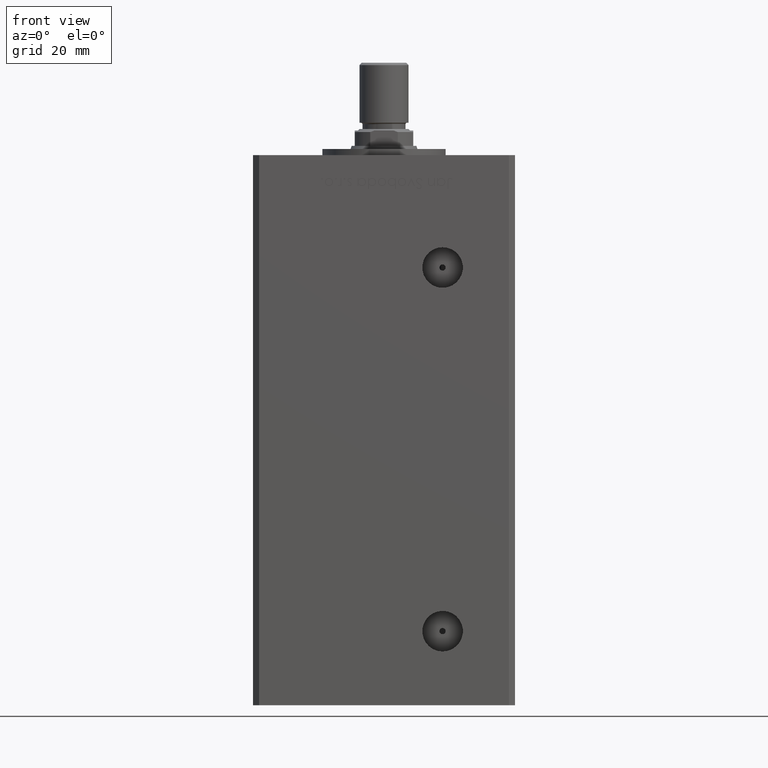
[diagram: clean part render]
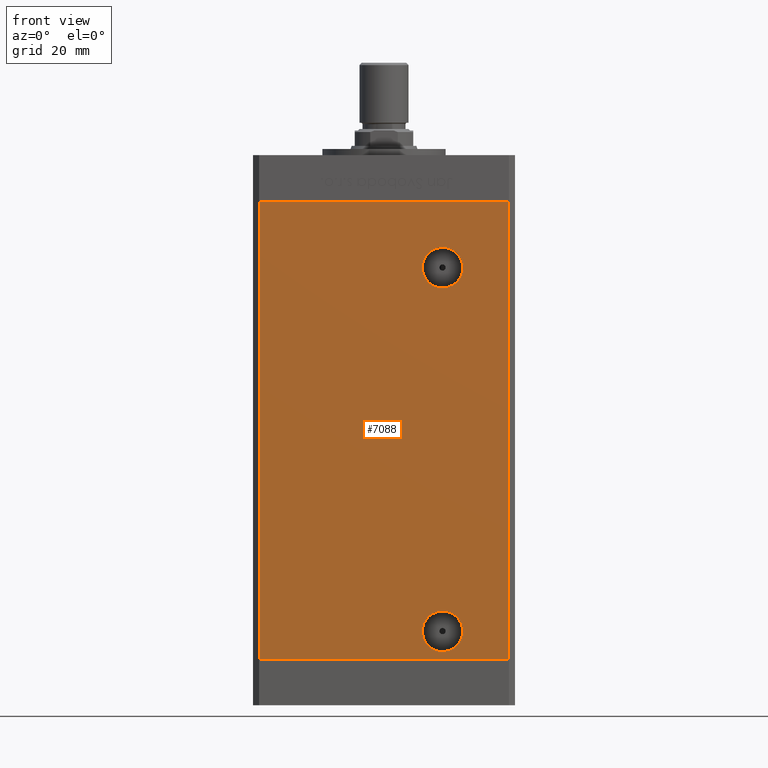
[diagram: same view with one face highlighted and labeled with its STEP entity id]
A machine part, front view. The second image highlights one B-rep face of the part: STEP entity #7088.
In plain terms, the highlighted planar face has unit normal (0, 1, 0).
Its self-contained STEP definition (entity closure, byte-faithful):
#644 = CARTESIAN_POINT ( 'NONE',  ( -40.49999999999998579, -37.50000000000000711, 148.5000000000000000 ) ) ;
#824 = CARTESIAN_POINT ( 'NONE',  ( 40.49999999999998579, -37.50000000000000711, 0.000000000000000000 ) ) ;
#1697 = ORIENTED_EDGE ( 'NONE', *, *, #6609, .F. ) ;
#2195 = CARTESIAN_POINT ( 'NONE',  ( 18.99999999999997513, -37.50000000000000711, 127.0000000000000000 ) ) ;
#2641 = EDGE_LOOP ( 'NONE', ( #50709, #27047 ) ) ;
#2709 = DIRECTION ( 'NONE',  ( -0.000000000000000000, 1.000000000000000000, -0.000000000000000000 ) ) ;
#3554 = VERTEX_POINT ( 'NONE', #25297 ) ;
#3616 = AXIS2_PLACEMENT_3D ( 'NONE', #644, #5415, #36718 ) ;
#3723 = CARTESIAN_POINT ( 'NONE',  ( 18.99999999999998934, -37.50000000000000711, 9.000000000000007105 ) ) ;
#4746 = ORIENTED_EDGE ( 'NONE', *, *, #27328, .T. ) ;
#5415 = DIRECTION ( 'NONE',  ( 0.000000000000000000, 1.000000000000000000, 0.000000000000000000 ) ) ;
#5473 = CIRCLE ( 'NONE', #36774, 6.579999999999998295 ) ;
#6566 = EDGE_CURVE ( 'NONE', #7439, #20643, #42928, .T. ) ;
#6609 = EDGE_CURVE ( 'NONE', #50338, #20643, #11060, .T. ) ;
#7088 = ADVANCED_FACE ( 'NONE', ( #36982, #12557, #37514 ), #25044, .F. ) ;
#7179 = DIRECTION ( 'NONE',  ( 0.000000000000000000, 0.000000000000000000, -1.000000000000000000 ) ) ;
#7439 = VERTEX_POINT ( 'NONE', #34461 ) ;
#8376 = AXIS2_PLACEMENT_3D ( 'NONE', #51141, #42155, #26773 ) ;
#10864 = DIRECTION ( 'NONE',  ( 1.000000000000000000, 0.000000000000000000, 0.000000000000000000 ) ) ;
#11060 = LINE ( 'NONE', #23015, #27293 ) ;
#11087 = EDGE_CURVE ( 'NONE', #47452, #43623, #36614, .T. ) ;
#12043 = VECTOR ( 'NONE', #31258, 1000.000000000000000 ) ;
#12557 = FACE_OUTER_BOUND ( 'NONE', #23370, .T. ) ;
#15003 = VECTOR ( 'NONE', #19550, 1000.000000000000000 ) ;
#15764 = CARTESIAN_POINT ( 'NONE',  ( 18.99999999999998934, -37.50000000000000711, 9.000000000000007105 ) ) ;
#16414 = EDGE_CURVE ( 'NONE', #40856, #3554, #5473, .T. ) ;
#17158 = AXIS2_PLACEMENT_3D ( 'NONE', #2195, #2709, #18089 ) ;
#17742 = CIRCLE ( 'NONE', #38082, 6.579999999999998295 ) ;
#18089 = DIRECTION ( 'NONE',  ( 0.000000000000000000, 0.000000000000000000, -1.000000000000000000 ) ) ;
#18538 = ORIENTED_EDGE ( 'NONE', *, *, #11087, .T. ) ;
#19038 = DIRECTION ( 'NONE',  ( -0.000000000000000000, -0.000000000000000000, -1.000000000000000000 ) ) ;
#19550 = DIRECTION ( 'NONE',  ( -0.000000000000000000, -0.000000000000000000, -1.000000000000000000 ) ) ;
#20643 = VERTEX_POINT ( 'NONE', #824 ) ;
#23015 = CARTESIAN_POINT ( 'NONE',  ( 40.49999999999998579, -37.50000000000000711, 148.5000000000000000 ) ) ;
#23079 = CARTESIAN_POINT ( 'NONE',  ( -40.49999999999998579, -37.50000000000000711, 148.5000000000000000 ) ) ;
#23370 = EDGE_LOOP ( 'NONE', ( #24871, #1697, #26575, #49467 ) ) ;
#24871 = ORIENTED_EDGE ( 'NONE', *, *, #6566, .T. ) ;
#25044 = PLANE ( 'NONE',  #3616 ) ;
#25297 = CARTESIAN_POINT ( 'NONE',  ( 18.99999999999998934, -37.50000000000000711, 15.58000000000000718 ) ) ;
#25451 = EDGE_CURVE ( 'NONE', #46609, #7439, #34703, .T. ) ;
#26575 = ORIENTED_EDGE ( 'NONE', *, *, #39252, .F. ) ;
#26773 = DIRECTION ( 'NONE',  ( 0.000000000000000000, 0.000000000000000000, -1.000000000000000000 ) ) ;
#27047 = ORIENTED_EDGE ( 'NONE', *, *, #33675, .F. ) ;
#27293 = VECTOR ( 'NONE', #19038, 1000.000000000000000 ) ;
#27328 = EDGE_CURVE ( 'NONE', #43623, #47452, #45681, .T. ) ;
#27343 = CARTESIAN_POINT ( 'NONE',  ( -40.49999999999998579, -37.50000000000000711, 148.5000000000000000 ) ) ;
#29921 = CARTESIAN_POINT ( 'NONE',  ( 40.49999999999998579, -37.50000000000000711, 148.5000000000000000 ) ) ;
#31258 = DIRECTION ( 'NONE',  ( 1.000000000000000000, 0.000000000000000000, 0.000000000000000000 ) ) ;
#31856 = DIRECTION ( 'NONE',  ( 0.000000000000000000, -1.000000000000000000, 0.000000000000000000 ) ) ;
#31965 = DIRECTION ( 'NONE',  ( 0.000000000000000000, 0.000000000000000000, -1.000000000000000000 ) ) ;
#32483 = DIRECTION ( 'NONE',  ( 0.000000000000000000, -1.000000000000000000, 0.000000000000000000 ) ) ;
#33675 = EDGE_CURVE ( 'NONE', #3554, #40856, #17742, .T. ) ;
#34461 = CARTESIAN_POINT ( 'NONE',  ( -40.49999999999998579, -37.50000000000000711, 0.000000000000000000 ) ) ;
#34703 = LINE ( 'NONE', #38684, #15003 ) ;
#34802 = CARTESIAN_POINT ( 'NONE',  ( 18.99999999999998934, -37.50000000000000711, 2.420000000000009699 ) ) ;
#34971 = CARTESIAN_POINT ( 'NONE',  ( -40.49999999999998579, -37.50000000000000711, 0.000000000000000000 ) ) ;
#35298 = LINE ( 'NONE', #23079, #42479 ) ;
#36614 = CIRCLE ( 'NONE', #17158, 6.579999999999988525 ) ;
#36718 = DIRECTION ( 'NONE',  ( 0.000000000000000000, -0.000000000000000000, 1.000000000000000000 ) ) ;
#36774 = AXIS2_PLACEMENT_3D ( 'NONE', #3723, #31856, #7179 ) ;
#36982 = FACE_BOUND ( 'NONE', #2641, .T. ) ;
#37514 = FACE_BOUND ( 'NONE', #50975, .T. ) ;
#37732 = CARTESIAN_POINT ( 'NONE',  ( 18.99999999999997513, -37.50000000000000711, 133.5800000000000125 ) ) ;
#38082 = AXIS2_PLACEMENT_3D ( 'NONE', #15764, #32483, #31965 ) ;
#38684 = CARTESIAN_POINT ( 'NONE',  ( -40.49999999999998579, -37.50000000000000711, 148.5000000000000000 ) ) ;
#39252 = EDGE_CURVE ( 'NONE', #46609, #50338, #35298, .T. ) ;
#40856 = VERTEX_POINT ( 'NONE', #34802 ) ;
#42155 = DIRECTION ( 'NONE',  ( -0.000000000000000000, 1.000000000000000000, -0.000000000000000000 ) ) ;
#42479 = VECTOR ( 'NONE', #10864, 1000.000000000000000 ) ;
#42928 = LINE ( 'NONE', #34971, #12043 ) ;
#43623 = VERTEX_POINT ( 'NONE', #37732 ) ;
#45681 = CIRCLE ( 'NONE', #8376, 6.579999999999988525 ) ;
#46609 = VERTEX_POINT ( 'NONE', #27343 ) ;
#46635 = CARTESIAN_POINT ( 'NONE',  ( 18.99999999999997513, -37.50000000000000711, 120.4200000000000159 ) ) ;
#47452 = VERTEX_POINT ( 'NONE', #46635 ) ;
#49467 = ORIENTED_EDGE ( 'NONE', *, *, #25451, .T. ) ;
#50338 = VERTEX_POINT ( 'NONE', #29921 ) ;
#50709 = ORIENTED_EDGE ( 'NONE', *, *, #16414, .F. ) ;
#50975 = EDGE_LOOP ( 'NONE', ( #18538, #4746 ) ) ;
#51141 = CARTESIAN_POINT ( 'NONE',  ( 18.99999999999997513, -37.50000000000000711, 127.0000000000000000 ) ) ;